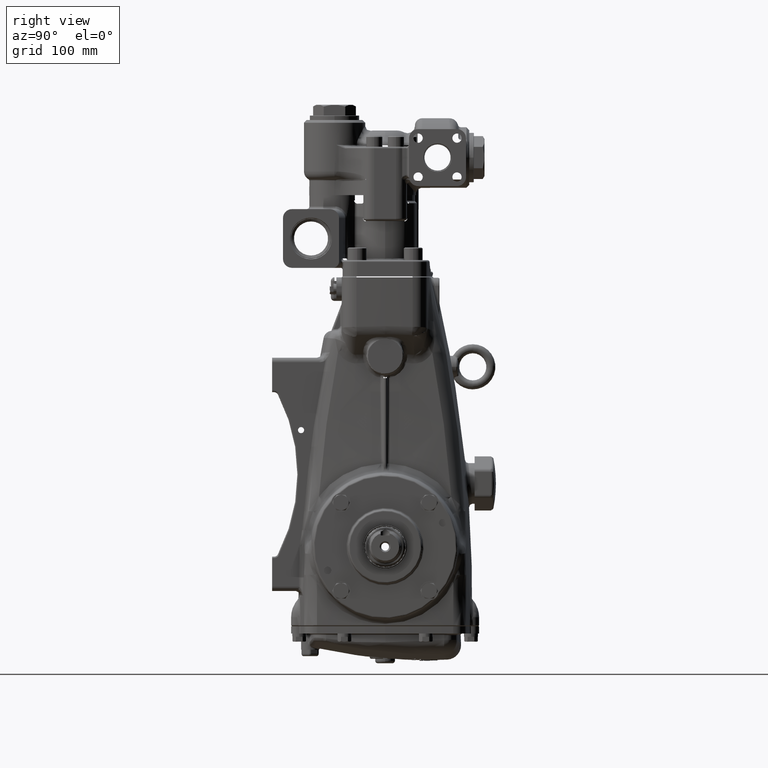
[diagram: clean part render]
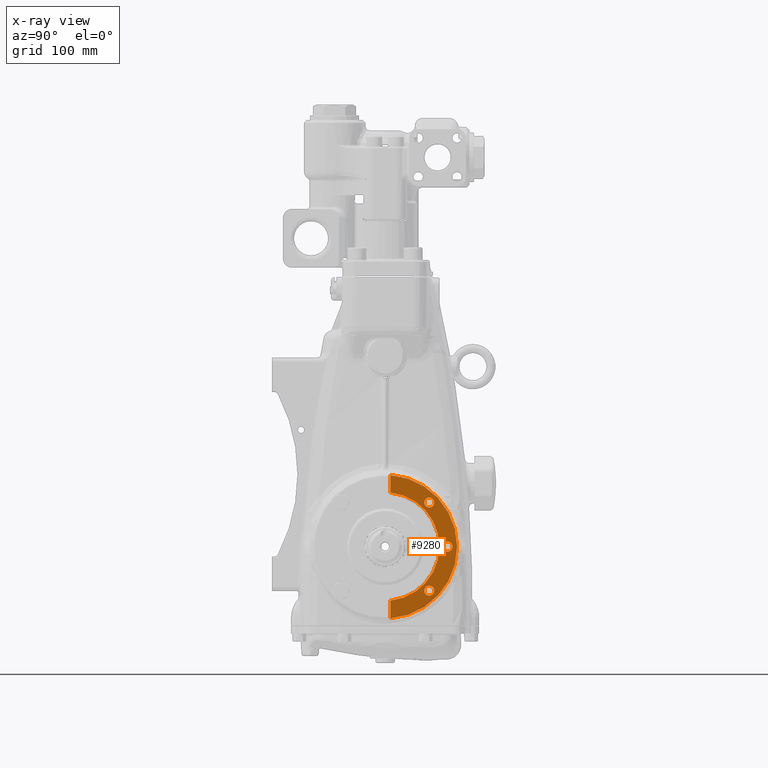
[diagram: x-ray — body ghosted, one internal face saturated and labeled with its STEP entity id]
A machine part, right view, then the same camera in x-ray: the body is ghosted and one INTERNAL B-rep face — a face not visible from any outside direction — is saturated and labeled: STEP entity #9280.
In plain terms, the highlighted planar face has unit normal (-1, -0, 0).
Its self-contained STEP definition (entity closure, byte-faithful):
#343 = ORIENTED_EDGE ( 'NONE', *, *, #19138, .F. ) ;
#2258 = CIRCLE ( 'NONE', #76845, 0.2165354330708663400 ) ;
#2968 = EDGE_CURVE ( 'NONE', #85311, #22811, #74502, .T. ) ;
#3025 = CARTESIAN_POINT ( 'NONE',  ( -4.921259842519686067, 8.794565639486060856E-17, 3.843505302314713897E-16 ) ) ;
#4324 = ORIENTED_EDGE ( 'NONE', *, *, #75205, .T. ) ;
#4962 = EDGE_CURVE ( 'NONE', #104712, #47599, #11910, .T. ) ;
#5174 = DIRECTION ( 'NONE',  ( 0.0000000000000000000, 1.000000000000000000, -5.273559366969488045E-15 ) ) ;
#5691 = AXIS2_PLACEMENT_3D ( 'NONE', #3025, #43744, #84434 ) ;
#5961 = CARTESIAN_POINT ( 'NONE',  ( -4.921259842519686067, 1.704345192987085422, -1.920880626057936524 ) ) ;
#7095 = ORIENTED_EDGE ( 'NONE', *, *, #2968, .T. ) ;
#9234 = DIRECTION ( 'NONE',  ( 0.0000000000000000000, 1.000000000000000000, -5.273559366969492778E-15 ) ) ;
#9280 = ADVANCED_FACE ( 'NONE', ( #63758, #104455, #13060, #53748 ), #94431, .F. ) ;
#9635 = ORIENTED_EDGE ( 'NONE', *, *, #4962, .F. ) ;
#11022 = AXIS2_PLACEMENT_3D ( 'NONE', #39957, #80640, #121318 ) ;
#11417 = VERTEX_POINT ( 'NONE', #25694 ) ;
#11910 = CIRCLE ( 'NONE', #28950, 0.2165354330708663400 ) ;
#13060 = FACE_BOUND ( 'NONE', #66176, .T. ) ;
#15402 = CIRCLE ( 'NONE', #32480, 0.2165354330708660624 ) ;
#15989 = CARTESIAN_POINT ( 'NONE',  ( -4.921259842519686067, 2.500000000000000444, -1.277302994469104264E-14 ) ) ;
#19138 = EDGE_CURVE ( 'NONE', #47599, #104712, #2258, .T. ) ;
#19198 = DIRECTION ( 'NONE',  ( 1.000000000000000000, 1.392087464881007303E-17, -5.804576252323939882E-17 ) ) ;
#21782 = EDGE_CURVE ( 'NONE', #55940, #47794, #15402, .T. ) ;
#22811 = VERTEX_POINT ( 'NONE', #49097 ) ;
#23783 = DIRECTION ( 'NONE',  ( -5.804576252323928789E-17, -5.273559366969492778E-15, -1.000000000000000000 ) ) ;
#25694 = CARTESIAN_POINT ( 'NONE',  ( -4.921259842519686067, 0.2362204724409278089, -3.120994550013500568 ) ) ;
#25727 = ORIENTED_EDGE ( 'NONE', *, *, #36635, .T. ) ;
#25881 = ORIENTED_EDGE ( 'NONE', *, *, #63854, .T. ) ;
#26529 = CIRCLE ( 'NONE', #101134, 0.2165354330708660624 ) ;
#28950 = AXIS2_PLACEMENT_3D ( 'NONE', #55902, #96595, #5174 ) ;
#29261 = CARTESIAN_POINT ( 'NONE',  ( -4.921259842519686067, 8.794565639486060856E-17, 3.843505302314713897E-16 ) ) ;
#31020 = CARTESIAN_POINT ( 'NONE',  ( -4.921259842519686067, 1.920880626057951623, -1.920880626057937635 ) ) ;
#32480 = AXIS2_PLACEMENT_3D ( 'NONE', #129252, #37866, #78566 ) ;
#33169 = AXIS2_PLACEMENT_3D ( 'NONE', #110565, #19198, #59895 ) ;
#34362 = CARTESIAN_POINT ( 'NONE',  ( -4.921259842519686067, 1.920880626057956064, 1.920880626057933416 ) ) ;
#34546 = CARTESIAN_POINT ( 'NONE',  ( -4.921259842519686067, 2.137416059128822265, 1.920880626057932306 ) ) ;
#35313 = DIRECTION ( 'NONE',  ( 1.000000000000000000, 1.392087464881007303E-17, -5.804576252323939882E-17 ) ) ;
#36635 = EDGE_CURVE ( 'NONE', #11417, #85311, #109444, .T. ) ;
#37398 = VECTOR ( 'NONE', #122596, 39.37007874015748143 ) ;
#37866 = DIRECTION ( 'NONE',  ( 1.000000000000000000, 1.392087464881007303E-17, -5.804576252323939882E-17 ) ) ;
#39957 = CARTESIAN_POINT ( 'NONE',  ( -4.921259842519686067, 8.794565639486060856E-17, 3.843505302314713897E-16 ) ) ;
#41234 = LINE ( 'NONE', #81921, #37398 ) ;
#42177 = CARTESIAN_POINT ( 'NONE',  ( -4.921259842519686067, 0.2362204724409328049, -2.350364024661308449 ) ) ;
#43744 = DIRECTION ( 'NONE',  ( -1.000000000000000000, -1.392087464881002372E-17, 5.804576252323939882E-17 ) ) ;
#45709 = EDGE_CURVE ( 'NONE', #95232, #50231, #90659, .T. ) ;
#47599 = VERTEX_POINT ( 'NONE', #15989 ) ;
#47794 = VERTEX_POINT ( 'NONE', #34546 ) ;
#49097 = CARTESIAN_POINT ( 'NONE',  ( -4.921259842519686067, 0.2362204724409575907, 2.350364024661306228 ) ) ;
#50231 = VERTEX_POINT ( 'NONE', #111709 ) ;
#51977 = AXIS2_PLACEMENT_3D ( 'NONE', #29261, #100647, #9234 ) ;
#53748 = FACE_OUTER_BOUND ( 'NONE', #79645, .T. ) ;
#53984 = VECTOR ( 'NONE', #23783, 39.37007874015748143 ) ;
#54371 = ORIENTED_EDGE ( 'NONE', *, *, #21782, .F. ) ;
#55077 = EDGE_LOOP ( 'NONE', ( #110081, #107294 ) ) ;
#55902 = CARTESIAN_POINT ( 'NONE',  ( -4.921259842519686067, 2.716535433070867089, -1.394146034854392752E-14 ) ) ;
#55940 = VERTEX_POINT ( 'NONE', #60408 ) ;
#57440 = AXIS2_PLACEMENT_3D ( 'NONE', #31020, #71718, #112374 ) ;
#59895 = DIRECTION ( 'NONE',  ( 0.0000000000000000000, 1.000000000000000000, -5.046468293750713771E-15 ) ) ;
#60408 = CARTESIAN_POINT ( 'NONE',  ( -4.921259842519686067, 1.704345192987090085, 1.920880626057934526 ) ) ;
#63758 = FACE_BOUND ( 'NONE', #55077, .T. ) ;
#63854 = EDGE_CURVE ( 'NONE', #68994, #11417, #41234, .T. ) ;
#65094 = CARTESIAN_POINT ( 'NONE',  ( -4.921259842519686067, 0.2362204724409616707, 3.120994550013498792 ) ) ;
#66176 = EDGE_LOOP ( 'NONE', ( #86934, #54371 ) ) ;
#68507 = CIRCLE ( 'NONE', #11022, 2.362204724409449064 ) ;
#68994 = VERTEX_POINT ( 'NONE', #42177 ) ;
#71718 = DIRECTION ( 'NONE',  ( 1.000000000000000000, 1.392087464881007303E-17, -5.804576252323939882E-17 ) ) ;
#74502 = LINE ( 'NONE', #115160, #53984 ) ;
#75065 = DIRECTION ( 'NONE',  ( 1.000000000000000000, 1.392087464881007303E-17, -5.804576252323939882E-17 ) ) ;
#75205 = EDGE_CURVE ( 'NONE', #22811, #68994, #68507, .T. ) ;
#76009 = DIRECTION ( 'NONE',  ( 0.0000000000000000000, 1.000000000000000000, -5.273559366969488045E-15 ) ) ;
#76845 = AXIS2_PLACEMENT_3D ( 'NONE', #126673, #35313, #76009 ) ;
#78566 = DIRECTION ( 'NONE',  ( 0.0000000000000000000, 1.000000000000000000, -5.046468293750713771E-15 ) ) ;
#79645 = EDGE_LOOP ( 'NONE', ( #4324, #25881, #25727, #7095 ) ) ;
#80640 = DIRECTION ( 'NONE',  ( -1.000000000000000000, -1.392087464881007303E-17, 5.804576252323939882E-17 ) ) ;
#81921 = CARTESIAN_POINT ( 'NONE',  ( -4.921259842519686067, 0.2362204724409287526, -3.120994550013500124 ) ) ;
#84434 = DIRECTION ( 'NONE',  ( 1.392087464881032879E-17, -1.000000000000000000, 5.273559366969492778E-15 ) ) ;
#85311 = VERTEX_POINT ( 'NONE', #65094 ) ;
#86934 = ORIENTED_EDGE ( 'NONE', *, *, #100409, .F. ) ;
#90659 = CIRCLE ( 'NONE', #33169, 0.2165354330708660624 ) ;
#94431 = PLANE ( 'NONE',  #5691 ) ;
#95232 = VERTEX_POINT ( 'NONE', #5961 ) ;
#95528 = CARTESIAN_POINT ( 'NONE',  ( -4.921259842519686067, 2.933070866141733291, -1.508337280989559020E-14 ) ) ;
#96595 = DIRECTION ( 'NONE',  ( 1.000000000000000000, 1.392087464881007303E-17, -5.804576252323939882E-17 ) ) ;
#97926 = CIRCLE ( 'NONE', #57440, 0.2165354330708660624 ) ;
#100409 = EDGE_CURVE ( 'NONE', #47794, #55940, #26529, .T. ) ;
#100647 = DIRECTION ( 'NONE',  ( 1.000000000000000000, 1.392087464881007303E-17, -5.804576252323939882E-17 ) ) ;
#101134 = AXIS2_PLACEMENT_3D ( 'NONE', #34362, #75065, #115721 ) ;
#104455 = FACE_BOUND ( 'NONE', #132016, .T. ) ;
#104712 = VERTEX_POINT ( 'NONE', #95528 ) ;
#107294 = ORIENTED_EDGE ( 'NONE', *, *, #45709, .F. ) ;
#109444 = CIRCLE ( 'NONE', #51977, 3.129921259842520342 ) ;
#110081 = ORIENTED_EDGE ( 'NONE', *, *, #110488, .F. ) ;
#110488 = EDGE_CURVE ( 'NONE', #50231, #95232, #97926, .T. ) ;
#110565 = CARTESIAN_POINT ( 'NONE',  ( -4.921259842519686067, 1.920880626057951623, -1.920880626057937635 ) ) ;
#111709 = CARTESIAN_POINT ( 'NONE',  ( -4.921259842519686067, 2.137416059128817380, -1.920880626057938745 ) ) ;
#112374 = DIRECTION ( 'NONE',  ( 0.0000000000000000000, 1.000000000000000000, -5.046468293750713771E-15 ) ) ;
#115160 = CARTESIAN_POINT ( 'NONE',  ( -4.921259842519686067, 0.2362204724409575907, 2.350364024661306228 ) ) ;
#115721 = DIRECTION ( 'NONE',  ( 0.0000000000000000000, 1.000000000000000000, -5.046468293750713771E-15 ) ) ;
#121318 = DIRECTION ( 'NONE',  ( 0.0000000000000000000, -1.000000000000000000, 5.273559366969492778E-15 ) ) ;
#122596 = DIRECTION ( 'NONE',  ( -5.804576252323928789E-17, -5.273559366969492778E-15, -1.000000000000000000 ) ) ;
#126673 = CARTESIAN_POINT ( 'NONE',  ( -4.921259842519686067, 2.716535433070867089, -1.394146034854392752E-14 ) ) ;
#129252 = CARTESIAN_POINT ( 'NONE',  ( -4.921259842519686067, 1.920880626057956064, 1.920880626057933416 ) ) ;
#132016 = EDGE_LOOP ( 'NONE', ( #9635, #343 ) ) ;